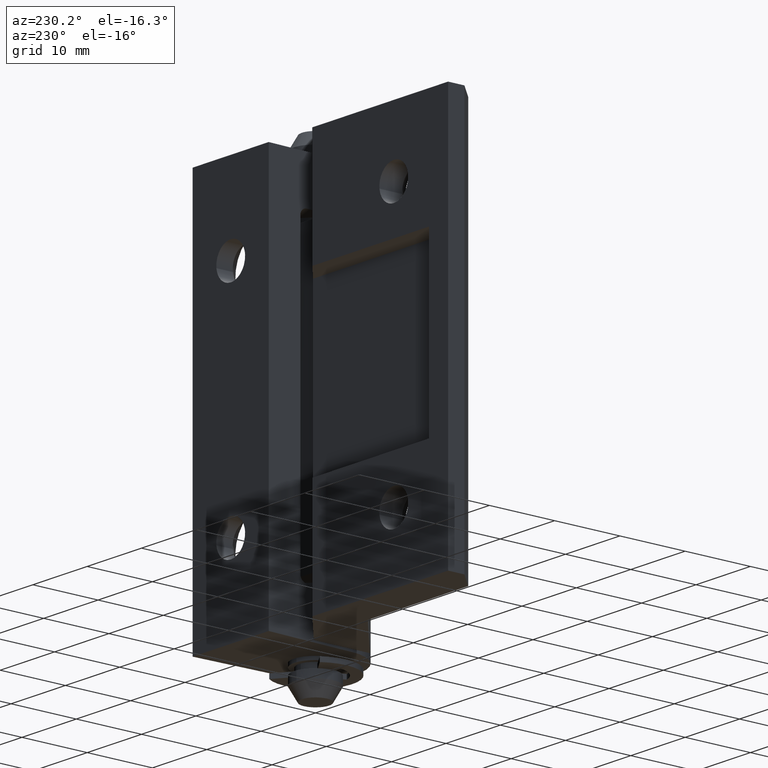
[diagram: clean part render]
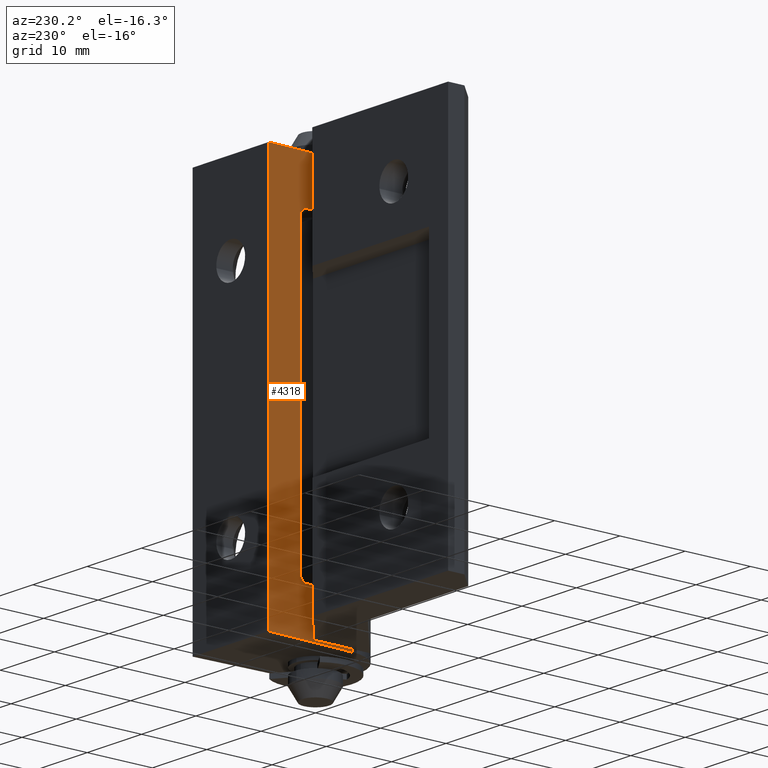
[diagram: same view with one face highlighted and labeled with its STEP entity id]
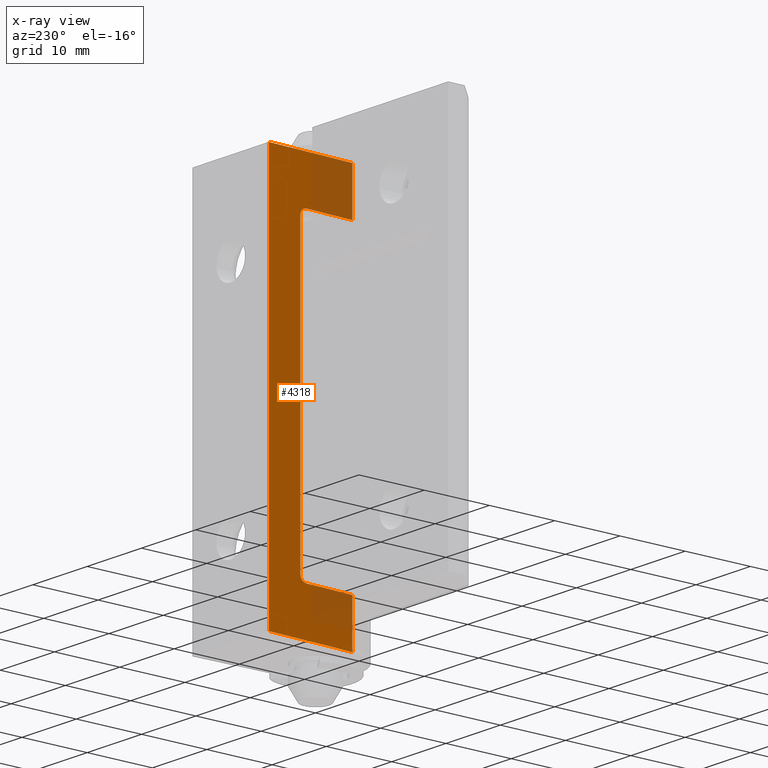
[diagram: x-ray of the same camera — body ghosted, the highlighted face saturated]
A machine part, auxiliary view. The second image highlights one B-rep face of the part: STEP entity #4318.
The next image is the same camera in x-ray: the body ghosted, the highlighted face saturated — about 17% of this face is hidden behind the body in this view.
In plain terms, the highlighted face is a freeform B-spline surface patch.
Its self-contained STEP definition (entity closure, byte-faithful):
#3907=CARTESIAN_POINT('',(-6.809535238015150,8.000000379979900,52.000002517364912));
#3908=VERTEX_POINT('',#3907);
#3909=CARTESIAN_POINT('',(-6.771436447428630,7.000000379979900,53.000002517364898));
#3910=VERTEX_POINT('',#3909);
#3911=CARTESIAN_POINT('',(-6.809535238015150,8.000000379979900,52.000002517364912));
#3912=CARTESIAN_POINT('',(-6.809535239366115,8.000000415436849,52.414216019209299));
#3913=CARTESIAN_POINT('',(-6.798376361760500,7.707107191430847,52.707109268287148));
#3914=CARTESIAN_POINT('',(-6.787217484154885,7.414213967424844,53.000002517365004));
#3915=CARTESIAN_POINT('',(-6.771436447428630,7.000000379979900,53.000002517364898));
#3923=(BOUNDED_CURVE()B_SPLINE_CURVE(2,(#3911,#3912,#3913,#3914,#3915),.UNSPECIFIED.,.F.,.U.)B_SPLINE_CURVE_WITH_KNOTS((3,2,3),(0.0,0.500000000000000,1.0),.UNSPECIFIED.)CURVE()GEOMETRIC_REPRESENTATION_ITEM()RATIONAL_B_SPLINE_CURVE((1.0,0.923879524321799,1.0,0.923879524321799,1.0))REPRESENTATION_ITEM(''));
#3924=EDGE_CURVE('',#3908,#3910,#3923,.T.);
#3978=CARTESIAN_POINT('',(-6.771436447428630,7.000000379979900,7.000000332482160));
#3979=VERTEX_POINT('',#3978);
#3980=CARTESIAN_POINT('',(-6.809535238015150,8.000000379979900,8.000000332482159));
#3981=VERTEX_POINT('',#3980);
#3982=CARTESIAN_POINT('',(-6.771436447428630,7.000000379979900,7.000000332482160));
#3983=CARTESIAN_POINT('',(-6.787217479307611,7.414213840195778,7.000000272639843));
#3984=CARTESIAN_POINT('',(-6.798376358661430,7.707107110087838,7.292893500216996));
#3985=CARTESIAN_POINT('',(-6.809535238015248,8.000000379979900,7.585786727794151));
#3986=CARTESIAN_POINT('',(-6.809535238015150,8.000000379979900,8.000000332482159));
#3994=(BOUNDED_CURVE()B_SPLINE_CURVE(2,(#3982,#3983,#3984,#3985,#3986),.UNSPECIFIED.,.F.,.U.)B_SPLINE_CURVE_WITH_KNOTS((3,2,3),(0.0,0.500000000000000,1.0),.UNSPECIFIED.)CURVE()GEOMETRIC_REPRESENTATION_ITEM()RATIONAL_B_SPLINE_CURVE((1.0,0.923879518689514,1.0,0.923879518689514,1.0))REPRESENTATION_ITEM(''));
#3995=EDGE_CURVE('',#3979,#3981,#3994,.T.);
#4040=CARTESIAN_POINT('',(-6.495316872404251,-0.247462617497442,53.000002517364898));
#4041=VERTEX_POINT('',#4040);
#4042=CARTESIAN_POINT('',(-6.495316872404251,-0.247462617497442,53.000002517364898));
#4043=CARTESIAN_POINT('',(-6.771436447428630,7.000000379979900,53.000002517364898));
#4044=QUASI_UNIFORM_CURVE('',1,(#4042,#4043),.UNSPECIFIED.,.F.,.U.);
#4045=EDGE_CURVE('',#4041,#3910,#4044,.T.);
#4092=CARTESIAN_POINT('',(-6.495316872404251,-0.247462617497442,7.000000332482160));
#4093=VERTEX_POINT('',#4092);
#4094=CARTESIAN_POINT('',(-6.771436447428630,7.000000379979900,7.000000332482160));
#4095=CARTESIAN_POINT('',(-6.495316872404251,-0.247462617497442,7.000000332482160));
#4096=QUASI_UNIFORM_CURVE('',1,(#4094,#4095),.UNSPECIFIED.,.F.,.U.);
#4097=EDGE_CURVE('',#3979,#4093,#4096,.T.);
#4137=CARTESIAN_POINT('',(-6.495316872404200,-0.247462617497441,-2.220446E-013));
#4138=VERTEX_POINT('',#4137);
#4154=CARTESIAN_POINT('',(-7.000029199995709,13.000000617466879,-2.220446E-013));
#4155=VERTEX_POINT('',#4154);
#4156=CARTESIAN_POINT('',(-7.000029199995709,13.000000617466879,-2.220446E-013));
#4157=CARTESIAN_POINT('',(-6.495316872404200,-0.247462617497441,-2.220446E-013));
#4158=QUASI_UNIFORM_CURVE('',1,(#4156,#4157),.UNSPECIFIED.,.F.,.U.);
#4159=EDGE_CURVE('',#4155,#4138,#4158,.T.);
#4189=CARTESIAN_POINT('',(-7.000029199995709,13.000000617466879,60.000002849847100));
#4190=VERTEX_POINT('',#4189);
#4196=CARTESIAN_POINT('',(-6.495316872404200,-0.247462617497441,60.000002849847100));
#4197=VERTEX_POINT('',#4196);
#4198=CARTESIAN_POINT('',(-7.000029199995709,13.000000617466879,60.000002849847100));
#4199=CARTESIAN_POINT('',(-6.495316872404200,-0.247462617497441,60.000002849847100));
#4200=QUASI_UNIFORM_CURVE('',1,(#4198,#4199),.UNSPECIFIED.,.F.,.U.);
#4201=EDGE_CURVE('',#4190,#4197,#4200,.T.);
#4252=CARTESIAN_POINT('',(-6.495316872404200,-0.247462617497441,60.000002849847100));
#4253=CARTESIAN_POINT('',(-6.495316872404251,-0.247462617497442,53.000002517364898));
#4254=QUASI_UNIFORM_CURVE('',1,(#4252,#4253),.UNSPECIFIED.,.F.,.U.);
#4255=EDGE_CURVE('',#4197,#4041,#4254,.T.);
#4279=CARTESIAN_POINT('',(-6.495316872404251,-0.247462617497442,7.000000332482160));
#4280=CARTESIAN_POINT('',(-6.495316872404200,-0.247462617497441,-2.220446E-013));
#4281=QUASI_UNIFORM_CURVE('',1,(#4279,#4280),.UNSPECIFIED.,.F.,.U.);
#4282=EDGE_CURVE('',#4093,#4138,#4281,.T.);
#4293=CARTESIAN_POINT('',(-6.470106492619240,-0.909173380407754,-2.997000026058448));
#4294=CARTESIAN_POINT('',(-7.025239593318116,13.661711735701850,-2.997000026058448));
#4295=CARTESIAN_POINT('',(-6.470106492619240,-0.909173380407754,62.997004485230811));
#4296=CARTESIAN_POINT('',(-7.025239593318116,13.661711735701850,62.997004485230811));
#4297=B_SPLINE_SURFACE_WITH_KNOTS('',1,1,((#4293,#4295),(#4294,#4296)),.UNSPECIFIED.,.F.,.F.,.U.,(2,2),(2,2),(0.0,14.581456231335601),(0.0,65.994004511289262),.UNSPECIFIED.);
#4298=ORIENTED_EDGE('',*,*,#4097,.F.);
#4299=ORIENTED_EDGE('',*,*,#3995,.T.);
#4300=CARTESIAN_POINT('',(-6.809535238015150,8.000000379979900,52.000002517364912));
#4301=CARTESIAN_POINT('',(-6.809535238015150,8.000000379979900,8.000000332482159));
#4302=QUASI_UNIFORM_CURVE('',1,(#4300,#4301),.UNSPECIFIED.,.F.,.U.);
#4303=EDGE_CURVE('',#3908,#3981,#4302,.T.);
#4304=ORIENTED_EDGE('',*,*,#4303,.F.);
#4305=ORIENTED_EDGE('',*,*,#3924,.T.);
#4306=ORIENTED_EDGE('',*,*,#4045,.F.);
#4307=ORIENTED_EDGE('',*,*,#4255,.F.);
#4308=ORIENTED_EDGE('',*,*,#4201,.F.);
#4309=CARTESIAN_POINT('',(-7.000029199995709,13.000000617466879,60.000002849847100));
#4310=CARTESIAN_POINT('',(-7.000029199995709,13.000000617466879,-2.220446E-013));
#4311=QUASI_UNIFORM_CURVE('',1,(#4309,#4310),.UNSPECIFIED.,.F.,.U.);
#4312=EDGE_CURVE('',#4190,#4155,#4311,.T.);
#4313=ORIENTED_EDGE('',*,*,#4312,.T.);
#4314=ORIENTED_EDGE('',*,*,#4159,.T.);
#4315=ORIENTED_EDGE('',*,*,#4282,.F.);
#4316=EDGE_LOOP('',(#4298,#4299,#4304,#4305,#4306,#4307,#4308,#4313,#4314,#4315));
#4317=FACE_OUTER_BOUND('',#4316,.T.);
#4318=ADVANCED_FACE('',(#4317),#4297,.F.);